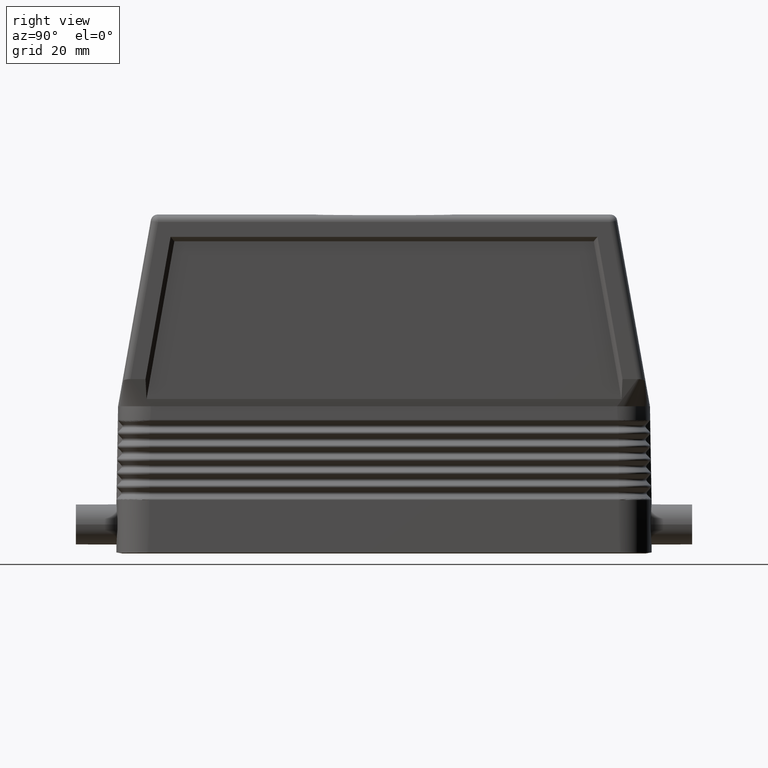
[diagram: clean part render]
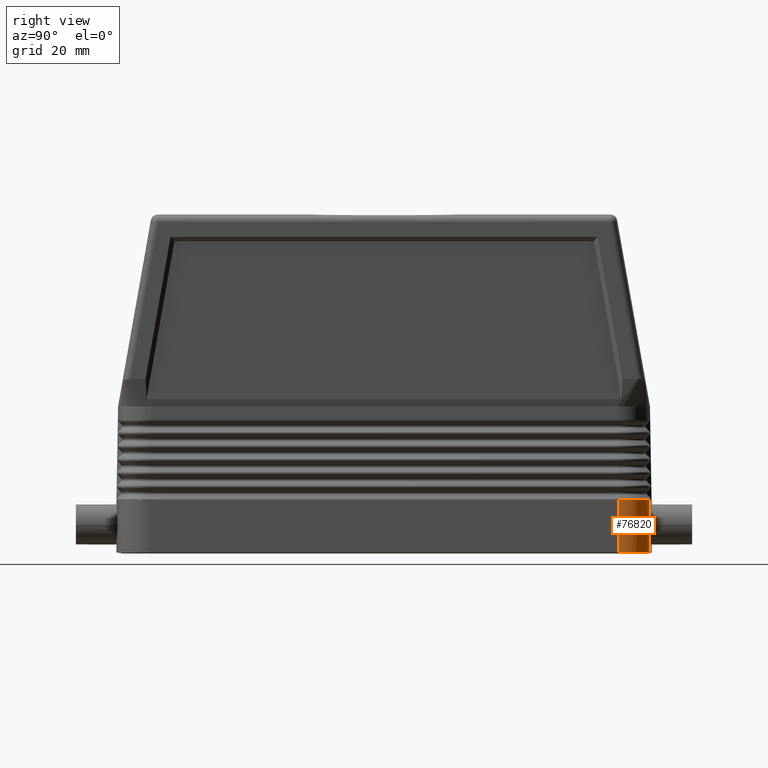
[diagram: same view with one face highlighted and labeled with its STEP entity id]
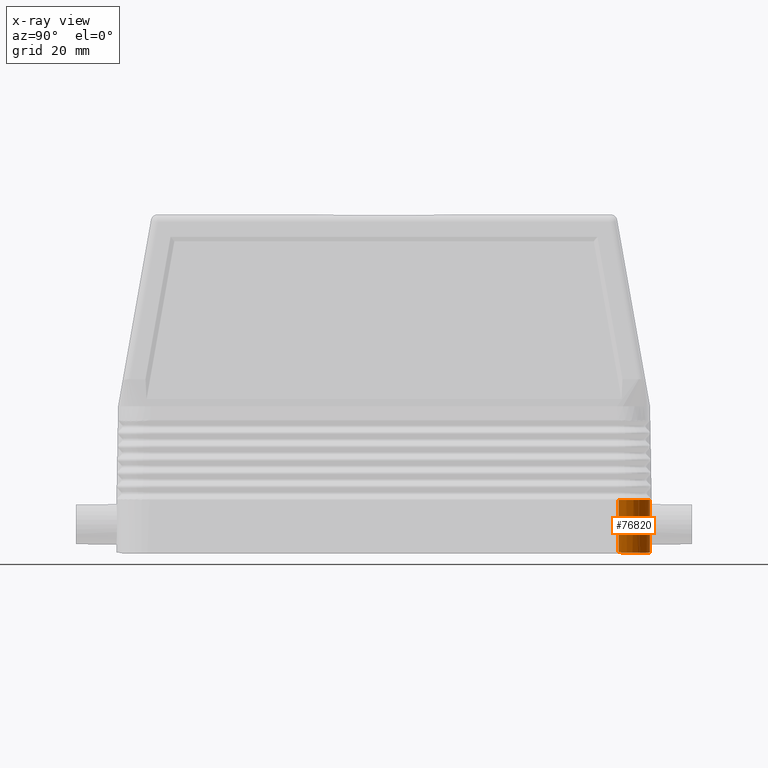
[diagram: x-ray of the same camera — body ghosted, the highlighted face saturated]
A machine part, right view. The second image highlights one B-rep face of the part: STEP entity #76820.
The next image is the same camera in x-ray: the body ghosted, the highlighted face saturated — about 0% of this face is hidden behind the body in this view.
In plain terms, the highlighted cylindrical surface (edge-blend (fillet) strip) has radius 7 mm, axis along (0, 0, -1).
Its self-contained STEP definition (entity closure, byte-faithful):
#24630=CARTESIAN_POINT('',(410.082514349959,83.0241697757277,
-0.768652177367192));
#24640=DIRECTION('',(-0.17364817766693,0.,0.984807753012208));
#24650=DIRECTION('',(0.984807753012208,0.,0.17364817766693));
#24660=AXIS2_PLACEMENT_3D('',#24630,#24640,#24650);
#24670=ELLIPSE('',#24660,7.10798628320021,7.);
#24680=CARTESIAN_POINT('',(417.082514349959,83.0241697757277,
0.465636687592051));
#24690=VERTEX_POINT('',#24680);
#24700=CARTESIAN_POINT('',(417.061352420621,83.5680623970085,
0.461905268485864));
#24710=VERTEX_POINT('',#24700);
#24720=EDGE_CURVE('',#24690,#24710,#24670,.T.);
#34880=CARTESIAN_POINT('',(417.082514349959,83.0241697757277,
12.232632009636));
#34890=DIRECTION('',(0.,0.,-1.));
#34900=VECTOR('',#34890,1.);
#34910=LINE('',#34880,#34900);
#34920=CARTESIAN_POINT('',(417.082514349959,83.0241697757277,
12.232629009636));
#34930=VERTEX_POINT('',#34920);
#34940=EDGE_CURVE('',#34930,#24690,#34910,.T.);
#37940=CARTESIAN_POINT('',(417.082514349892,83.0242004656899,
12.232629013489));
#37950=VERTEX_POINT('',#37940);
#37980=CARTESIAN_POINT('',(417.082514349959,70.8725639329094,
12.232629009636));
#37990=DIRECTION('',(0.999847695156391,0.,0.0174524064372835));
#38000=DIRECTION('',(0.,-1.,0.));
#38010=AXIS2_PLACEMENT_3D('',#37980,#37990,#38000);
#38020=PLANE('',#38010);
#38030=CARTESIAN_POINT('',(410.082514349959,83.0241697757277,
12.232629009636));
#38040=DIRECTION('',(0.,0.,-1.));
#38050=DIRECTION('',(-1.,0.,0.));
#38060=AXIS2_PLACEMENT_3D('',#38030,#38040,#38050);
#38070=CYLINDRICAL_SURFACE('',#38060,7.);
#38080=CARTESIAN_POINT('',(417.082514349959,83.0241697757277,
12.2326290096361));
#38090=CARTESIAN_POINT('',(417.082514349959,83.0241723332202,
12.2326290096361));
#38100=CARTESIAN_POINT('',(417.082514349958,83.0241748907136,
12.2326290097174));
#38110=CARTESIAN_POINT('',(417.082514349955,83.0241774482083,
12.232629009878));
#38120=CARTESIAN_POINT('',(417.082514349952,83.024180005703,
12.2326290100386));
#38130=CARTESIAN_POINT('',(417.082514349948,83.0241825631987,
12.2326290102791));
#38140=CARTESIAN_POINT('',(417.082514349942,83.0241851206956,
12.2326290106003));
#38150=CARTESIAN_POINT('',(417.082514349937,83.0241876781925,
12.2326290109215));
#38160=CARTESIAN_POINT('',(417.08251434993,83.0241902356903,
12.2326290113214));
#38170=CARTESIAN_POINT('',(417.082514349921,83.0241927931895,
12.2326290118031));
#38180=CARTESIAN_POINT('',(417.082514349913,83.0241953506885,
12.2326290122849));
#38190=CARTESIAN_POINT('',(417.082514349903,83.0241979081886,
12.2326290128472));
#38200=CARTESIAN_POINT('',(417.082514349892,83.0242004656899,
12.2326290134896));
#38210=B_SPLINE_CURVE_WITH_KNOTS('',3,(#38080,#38090,#38100,#38110,
#38120,#38130,#38140,#38150,#38160,#38170,#38180,#38190,#38200),
.UNSPECIFIED.,.F.,.F.,(4,3,3,3,4),(0.,7.67248060404309E-6,
1.53449675346556E-5,2.30174613827474E-5,3.06899617255351E-5),
.UNSPECIFIED.);
#38220=SURFACE_CURVE('',#38210,(#38020,#38070),.CURVE_3D.);
#38230=EDGE_CURVE('',#34930,#37950,#38220,.T.);
#75150=ORIENTED_EDGE('',*,*,#34940,.T.);
#75160=ORIENTED_EDGE('',*,*,#38230,.F.);
#75170=CARTESIAN_POINT('',(417.082514349959,70.8725639329094,
12.232629009636));
#75180=DIRECTION('',(0.,-1.,0.));
#75190=VECTOR('',#75180,1.);
#75200=LINE('',#75170,#75190);
#75210=CARTESIAN_POINT('',(417.082514281364,83.0251497437898,
12.232629009636));
#75220=VERTEX_POINT('',#75210);
#75230=EDGE_CURVE('',#75220,#37950,#75200,.T.);
#75240=ORIENTED_EDGE('',*,*,#75230,.T.);
#75250=CARTESIAN_POINT('',(410.082514349959,83.0241697757277,
12.232629009636));
#75260=DIRECTION('',(0.,0.,1.));
#75270=DIRECTION('',(1.,-1.01506105108586E-15,0.));
#75280=AXIS2_PLACEMENT_3D('',#75250,#75260,#75270);
#75290=CIRCLE('',#75280,6.99999999999999);
#75300=CARTESIAN_POINT('',(410.651034244648,90.0010448018271,
12.2326290060078));
#75310=VERTEX_POINT('',#75300);
#75320=EDGE_CURVE('',#75220,#75310,#75290,.T.);
#75330=ORIENTED_EDGE('',*,*,#75320,.F.);
#75340=CARTESIAN_POINT('',(410.265752988114,90.0217710505566,
12.232629009636));
#75350=VERTEX_POINT('',#75340);
#75360=EDGE_CURVE('',#75310,#75350,#75290,.T.);
#75370=ORIENTED_EDGE('',*,*,#75360,.F.);
#75380=CARTESIAN_POINT('',(410.265752988114,90.0217710505566,
12.232629009636));
#75390=DIRECTION('',(0.,0.,-1.));
#75400=VECTOR('',#75390,1.);
#75410=LINE('',#75380,#75400);
#75420=CARTESIAN_POINT('',(410.265752988114,90.0217710505566,
0.397132650518559));
#75430=VERTEX_POINT('',#75420);
#75440=EDGE_CURVE('',#75350,#75430,#75410,.T.);
#75450=ORIENTED_EDGE('',*,*,#75440,.F.);
#75460=CARTESIAN_POINT('',(415.761062142136,83.5680623970085,
0.232629009636046));
#75470=CARTESIAN_POINT('',(419.020775804606,83.5680623970085,
0.807404477713584));
#75480=CARTESIAN_POINT('',(415.761062142136,84.0505491272019,
0.232629009636046));
#75490=CARTESIAN_POINT('',(419.020775804606,84.3353595104724,
0.807404477713584));
#75500=CARTESIAN_POINT('',(415.697826914788,84.5309564395526,
0.232629009636046));
#75510=CARTESIAN_POINT('',(418.920211360645,85.0993870027918,
0.807404477713586));
#75520=CARTESIAN_POINT('',(415.448107061675,85.4630367934334,
0.232629009636048));
#75530=CARTESIAN_POINT('',(418.523057059224,86.5817670266453,
0.807404477713584));
#75540=CARTESIAN_POINT('',(415.262695880752,85.9107021900589,
0.232629009636046));
#75550=CARTESIAN_POINT('',(418.228168577169,87.2937656741082,
0.807404477713584));
#75560=CARTESIAN_POINT('',(414.780248300208,86.7463748895818,
0.232629009636046));
#75570=CARTESIAN_POINT('',(417.460848011316,88.6228817781688,
0.807404477713586));
#75580=CARTESIAN_POINT('',(414.48528615866,87.1307889601053,
0.232629009636046));
#75590=CARTESIAN_POINT('',(416.991704488567,89.2343019011161,
0.807404477713584));
#75600=CARTESIAN_POINT('',(413.802976177753,87.8130989410125,
0.232629009636046));
#75610=CARTESIAN_POINT('',(415.906489118763,90.3195172709203,
0.807404477713584));
#75620=CARTESIAN_POINT('',(413.418562107229,88.1080610825612,
0.232629009636048));
#75630=CARTESIAN_POINT('',(415.295068995816,90.7886607936691,
0.807404477713584));
#75640=CARTESIAN_POINT('',(412.582889407706,88.5905086631051,
0.232629009636048));
#75650=CARTESIAN_POINT('',(413.965952891755,91.5559813595223,
0.807404477713586));
#75660=CARTESIAN_POINT('',(412.135224011081,88.7759198440278,
0.232629009636048));
#75670=CARTESIAN_POINT('',(413.253954244293,91.8508698415763,
0.807404477713586));
#75680=CARTESIAN_POINT('',(411.2031436572,89.0256396971407,
0.232629009636048));
#75690=CARTESIAN_POINT('',(411.771574220439,92.2480241429978,
0.807404477713586));
#75700=CARTESIAN_POINT('',(410.722736344849,89.0888749244886,
0.232629009636048));
#75710=CARTESIAN_POINT('',(411.00754672812,92.348588586959,
0.807404477713586));
#75720=CARTESIAN_POINT('',(410.240249614656,89.0888749244886,
0.232629009636048));
#75730=CARTESIAN_POINT('',(410.240249614656,92.348588586959,
0.807404477713586));
#75740=B_SPLINE_SURFACE_WITH_KNOTS('',1,3,((#75460,#75480,#75500,#75520,
#75540,#75560,#75580,#75600,#75620,#75640,#75660,#75680,#75700,#75720),(
#75470,#75490,#75510,#75530,#75550,#75570,#75590,#75610,#75630,#75650,
#75670,#75690,#75710,#75730)),.UNSPECIFIED.,.F.,.F.,.F.,(2,2),(4,2,2,2,2
,2,4),(0.,3.31),(0.,1.10108316294388,2.20216632588776,3.30324948883163,
4.40433265177551,5.50541581471939,6.60649897766327),.UNSPECIFIED.);
#75750=CARTESIAN_POINT('',(410.265752988114,90.0217710505567,
0.397132650518566));
#75760=CARTESIAN_POINT('',(410.37229072559,90.0189812617189,
0.396714960230883));
#75770=CARTESIAN_POINT('',(410.478889809377,90.0137539277525,
0.396332915306959));
#75780=CARTESIAN_POINT('',(410.585385299006,90.0060836113895,
0.395987427248892));
#75790=CARTESIAN_POINT('',(410.691880665951,89.9984133038627,
0.395641939588831));
#75800=CARTESIAN_POINT('',(410.798271401594,89.9883000476043,
0.395333011328104));
#75810=CARTESIAN_POINT('',(410.904390164125,89.9757537783914,
0.395061310777143));
#75820=CARTESIAN_POINT('',(411.010508901542,89.9632075121477,
0.394789610290483));
#75830=CARTESIAN_POINT('',(411.11635462137,89.9482283479687,
0.394555139875087));
#75840=CARTESIAN_POINT('',(411.221761085131,89.9308416860185,
0.394358322363572));
#75850=CARTESIAN_POINT('',(411.327167619636,89.9134550123992,
0.394161504719963));
#75860=CARTESIAN_POINT('',(411.432133869469,89.8936610348417,
0.394002342157848));
#75870=CARTESIAN_POINT('',(411.536498111835,89.8715000014581,
0.393881005125303));
#75880=CARTESIAN_POINT('',(411.588680212126,89.8604194892026,
0.39382033663332));
#75890=CARTESIAN_POINT('',(411.640711808078,89.848747457594,
0.393769120659645));
#75900=CARTESIAN_POINT('',(411.692573306495,89.8364902435624,
0.393727354052334));
#75910=CARTESIAN_POINT('',(411.74442271382,89.8242358872019,
0.393685597182573));
#75920=CARTESIAN_POINT('',(411.796145790507,89.8113867128324,
0.393653243941036));
#75930=CARTESIAN_POINT('',(411.847773740514,89.7979323405109,
0.393630317830605));
#75940=CARTESIAN_POINT('',(411.951021267805,89.77102577782,
0.393584469327768));
#75950=CARTESIAN_POINT('',(412.053816091219,89.7417150376614,
0.393576395414129));
#75960=CARTESIAN_POINT('',(412.155995884953,89.7100260652422,
0.393606427891648));
#75970=CARTESIAN_POINT('',(412.258175488234,89.678337151888,
0.39363646031319));
#75980=CARTESIAN_POINT('',(412.359739050915,89.6442702503761,
0.393704597980893));
#75990=CARTESIAN_POINT('',(412.460523279445,89.6078673334291,
0.393810900703606));
#76000=CARTESIAN_POINT('',(412.561307414351,89.571464450299,
0.393917203327569));
#76010=CARTESIAN_POINT('',(412.661311201446,89.5327258827324,
0.394061669543943));
#76020=CARTESIAN_POINT('',(412.760374010326,89.4917093109281,
0.394244097560795));
#76030=CARTESIAN_POINT('',(412.859436816822,89.4506927401107,
0.394426525573258));
#76040=CARTESIAN_POINT('',(412.957557651271,89.4073985756229,
0.394646913725845));
#76050=CARTESIAN_POINT('',(413.054581899176,89.3618992179565,
0.394904804567323));
#76060=CARTESIAN_POINT('',(413.151606232464,89.3163998202498,
0.39516269563575));
#76070=CARTESIAN_POINT('',(413.247533026643,89.2686957106431,
0.395458087554955));
#76080=CARTESIAN_POINT('',(413.342216762828,89.218872365807,
0.395790268072168));
#76090=CARTESIAN_POINT('',(413.43690067063,89.1690489306651,
0.396122449191465));
#76100=CARTESIAN_POINT('',(413.530340630291,89.1171068015513,
0.396491412848122));
#76110=CARTESIAN_POINT('',(413.622403022135,89.06314222049,
0.396896207014271));
#76120=CARTESIAN_POINT('',(413.668435230065,89.0361593367467,
0.397098608547097));
#76130=CARTESIAN_POINT('',(413.714118930024,89.0086736146495,
0.397309943824439));
#76140=CARTESIAN_POINT('',(413.759450697253,88.9806904965805,
0.397530131319664));
#76150=CARTESIAN_POINT('',(413.804793401975,88.9527006268413,
0.397750371940968));
#76160=CARTESIAN_POINT('',(413.849855718866,88.924168724838,
0.397979819236889));
#76170=CARTESIAN_POINT('',(413.894619217545,88.8951029620725,
0.398218413764797));
#76180=CARTESIAN_POINT('',(413.984146191238,88.8369714519084,
0.398695602694469));
#76190=CARTESIAN_POINT('',(414.072477428719,88.7767036901035,
0.39920939484859));
#76200=CARTESIAN_POINT('',(414.159466967061,88.7143769211581,
0.399759122623771));
#76210=CARTESIAN_POINT('',(414.246456355836,88.652050259375,
0.40030884945377));
#76220=CARTESIAN_POINT('',(414.332103162059,88.5876651481757,
0.400894507126933));
#76230=CARTESIAN_POINT('',(414.416265990179,88.5213141908664,
0.401515176912156));
#76240=CARTESIAN_POINT('',(414.500428751721,88.4549632860455,
0.402135846206384));
#76250=CARTESIAN_POINT('',(414.583106678993,88.3866471742601,
0.402791522567795));
#76260=CARTESIAN_POINT('',(414.664166225393,88.3164723079278,
0.403481041187027));
#76270=CARTESIAN_POINT('',(414.745225780832,88.246297433771,
0.40417055988314));
#76280=CARTESIAN_POINT('',(414.82466614541,88.1742645115423,
0.40489391432939));
#76290=CARTESIAN_POINT('',(414.90236443435,88.1004917871846,
0.405649697692683));
#76300=CARTESIAN_POINT('',(414.980062802363,88.0267189877482,
0.406405481825139));
#76310=CARTESIAN_POINT('',(415.056018348412,87.9512071447204,
0.407193688221851));
#76320=CARTESIAN_POINT('',(415.130121199901,87.8740837016049,
0.408012702759292));
#76330=CARTESIAN_POINT('',(415.204224196382,87.7969601075875,
0.408831718899238));
#76340=CARTESIAN_POINT('',(415.276473832346,87.7182257070278,
0.409681532610058));
#76350=CARTESIAN_POINT('',(415.346775126774,87.6380139943473,
0.410560373846377));
#76360=CARTESIAN_POINT('',(415.487214640586,87.4777766328234,
0.412316017706857));
#76370=CARTESIAN_POINT('',(415.620640404933,87.3107780820022,
0.414196973042011));
#76380=CARTESIAN_POINT('',(415.746466820341,87.1375190695831,
0.416196627864077));
#76390=CARTESIAN_POINT('',(415.8093662726,87.0509085041879,
0.417196236671239));
#76400=CARTESIAN_POINT('',(415.870336267918,86.9627742930003,
0.41822504137745));
#76410=CARTESIAN_POINT('',(415.929272582259,86.873249948059,
0.419281307397174));
#76420=CARTESIAN_POINT('',(415.988208858061,86.7837256616577,
0.420337572726205));
#76430=CARTESIAN_POINT('',(416.045110845349,86.692812122069,
0.421421286813683));
#76440=CARTESIAN_POINT('',(416.099886404837,86.6006531816973,
0.422530512703537));
#76450=CARTESIAN_POINT('',(416.154661977844,86.5084942185793,
0.423639738867166));
#76460=CARTESIAN_POINT('',(416.207310582088,86.4150907820278,
0.424774463798195));
#76470=CARTESIAN_POINT('',(416.257754110611,86.3205941868831,
0.425932585373926));
#76480=CARTESIAN_POINT('',(416.308197697426,86.22609748254,
0.427090708287958));
#76490=CARTESIAN_POINT('',(416.356435745811,86.1305085736699,
0.428272214928451));
#76500=CARTESIAN_POINT('',(416.402405521892,86.0339829883589,
0.429474902024865));
#76510=CARTESIAN_POINT('',(416.448375394571,85.9374572002134,
0.430677591648551));
#76520=CARTESIAN_POINT('',(416.492076620899,85.8399956948138,
0.431901449431014));
#76530=CARTESIAN_POINT('',(416.533462559805,85.7417545846878,
0.433144228048918));
#76540=CARTESIAN_POINT('',(416.57482455749,85.6435703057484,
0.434386287735781));
#76550=CARTESIAN_POINT('',(416.613987400164,85.5443433260025,
0.435650579882658));
#76560=CARTESIAN_POINT('',(416.650922529239,85.4440900203576,
0.436936774404385));
#76570=CARTESIAN_POINT('',(416.687853814422,85.3438471482202,
0.438222835069976));
#76580=CARTESIAN_POINT('',(416.722539286453,85.2426223810083,
0.439530233052056));
#76590=CARTESIAN_POINT('',(416.754909874073,85.1405671792851,
0.440856868270673));
#76600=CARTESIAN_POINT('',(416.787280415271,85.0385121239151,
0.442183501586819));
#76610=CARTESIAN_POINT('',(416.817335705601,84.9356276207064,
0.443529361073537));
#76620=CARTESIAN_POINT('',(416.845019991476,84.832073934818,
0.444892182640023));
#76630=CARTESIAN_POINT('',(416.872704263021,84.7285203025267,
0.446255003501143));
#76640=CARTESIAN_POINT('',(416.898017235801,84.6242985171736,
0.44763477158935));
#76650=CARTESIAN_POINT('',(416.920918027333,84.5195744518207,
0.449029109609557));
#76660=CARTESIAN_POINT('',(416.943818827614,84.4148503464588,
0.45042344816246));
#76670=CARTESIAN_POINT('',(416.964307230899,84.3096250112772,
0.451832342187791));
#76680=CARTESIAN_POINT('',(416.982358084783,84.2040665657115,
0.453253359038577));
#76690=CARTESIAN_POINT('',(417.000408962026,84.0985079835427,
0.454674377728299));
#76700=CARTESIAN_POINT('',(417.016022157339,83.9926173389622,
0.456107505458721));
#76710=CARTESIAN_POINT('',(417.029188415014,83.8865614697337,
0.457550302765212));
#76720=CARTESIAN_POINT('',(417.042354702278,83.7805053621595,
0.458993103314188));
#76730=CARTESIAN_POINT('',(417.053074005572,83.6742850517095,
0.460445560555322));
#76740=CARTESIAN_POINT('',(417.061352420621,83.5680623970085,
0.461905268485865));
#76750=B_SPLINE_CURVE_WITH_KNOTS('',3,(#75750,#75760,#75770,#75780,
#75790,#75800,#75810,#75820,#75830,#75840,#75850,#75860,#75870,#75880,
#75890,#75900,#75910,#75920,#75930,#75940,#75950,#75960,#75970,#75980,
#75990,#76000,#76010,#76020,#76030,#76040,#76050,#76060,#76070,#76080,
#76090,#76100,#76110,#76120,#76130,#76140,#76150,#76160,#76170,#76180,
#76190,#76200,#76210,#76220,#76230,#76240,#76250,#76260,#76270,#76280,
#76290,#76300,#76310,#76320,#76330,#76340,#76350,#76360,#76370,#76380,
#76390,#76400,#76410,#76420,#76430,#76440,#76450,#76460,#76470,#76480,
#76490,#76500,#76510,#76520,#76530,#76540,#76550,#76560,#76570,#76580,
#76590,#76600,#76610,#76620,#76630,#76640,#76650,#76660,#76670,#76680,
#76690,#76700,#76710,#76720,#76730,#76740),.UNSPECIFIED.,.F.,.F.,(4,3,3,
3,3,3,3,3,3,3,3,3,3,3,3,3,3,3,3,3,3,3,3,3,3,3,3,3,3,3,3,3,3,4),(0.,
0.320046976448698,0.640519754598156,0.961081531773811,1.28139226301393,
1.44134940337874,1.6012712863504,1.92181201848219,2.24304634887309,
2.56463852562449,2.88624010227765,3.20750229716719,3.52808833469911,
3.68803165923064,3.84802335645985,4.16868920996664,4.48999929059026,
4.81161518727296,5.13318766994514,5.45436900016803,5.77482532415536,
6.41558033148892,6.73695825570837,7.05858976428075,7.3801251454882,
7.7012180162876,8.02153777971845,8.34158974452698,8.66248361718809,
8.98392155587822,9.30556071309205,9.62705116656798,9.94804817350319,
10.2682247077826),.UNSPECIFIED.);
#76760=SURFACE_CURVE('',#76750,(#38070,#75740),.CURVE_3D.);
#76770=EDGE_CURVE('',#75430,#24710,#76760,.T.);
#76780=ORIENTED_EDGE('',*,*,#76770,.F.);
#76790=ORIENTED_EDGE('',*,*,#24720,.T.);
#76800=EDGE_LOOP('',(#76790,#76780,#75450,#75370,#75330,#75240,#75160,
#75150));
#76810=FACE_OUTER_BOUND('',#76800,.T.);
#76820=ADVANCED_FACE('',(#76810),#38070,.T.);